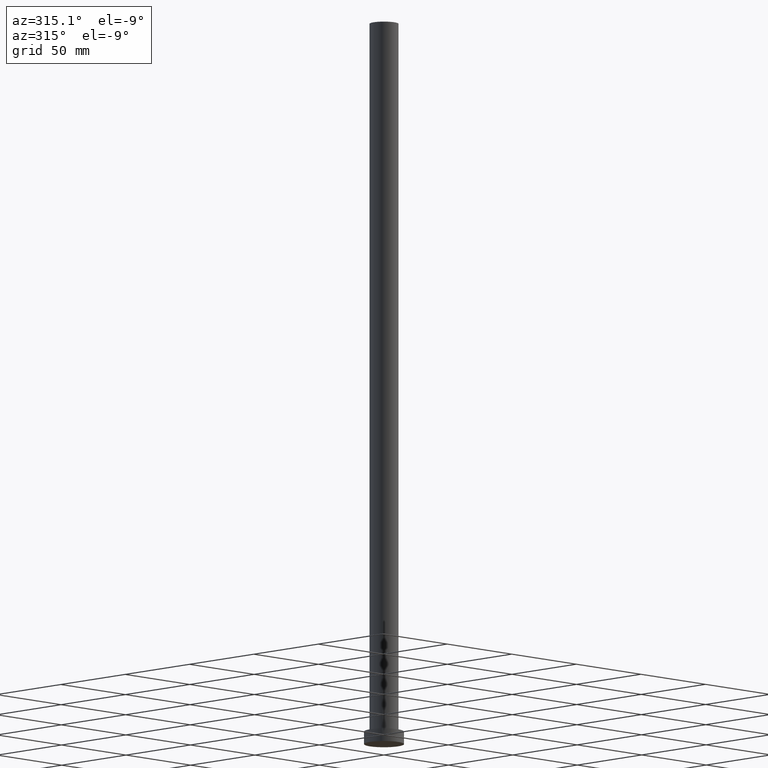
[diagram: clean part render]
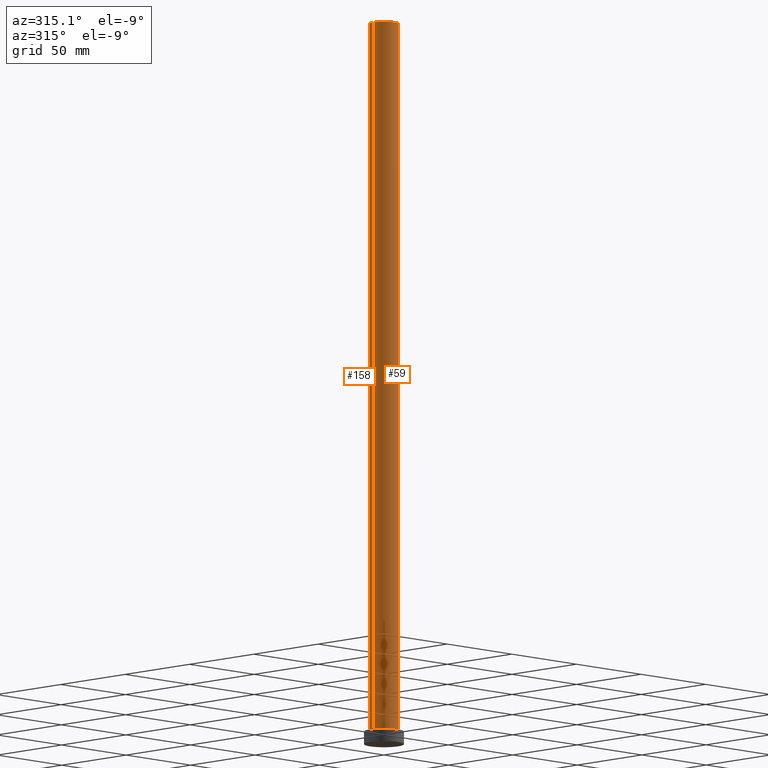
[diagram: same view with one multi-face feature highlighted, each face labeled with its STEP entity id]
A machine part, auxiliary view. The highlighted faces form ONE feature: a constant-radius fillet chain: 2 tangent blend faces with common blend radius 8 mm. The faces share edges in the B-rep.
Their STEP definitions:
[1] entity #59 (Cylinder):
#1 = DIRECTION ( 'NONE',  ( -0.000000000000000000, -0.000000000000000000, -1.000000000000000000 ) ) ;
#10 = VECTOR ( 'NONE', #137, 1000.000000000000000 ) ;
#11 = VERTEX_POINT ( 'NONE', #50 ) ;
#15 = DIRECTION ( 'NONE',  ( 0.000000000000000000, 0.000000000000000000, 1.000000000000000000 ) ) ;
#27 = ORIENTED_EDGE ( 'NONE', *, *, #162, .T. ) ;
#39 = CARTESIAN_POINT ( 'NONE',  ( 0.000000000000000000, 0.000000000000000000, 7.000000000000000000 ) ) ;
#50 = CARTESIAN_POINT ( 'NONE',  ( -8.000000000000000000, 0.000000000000000000, 7.000000000000000000 ) ) ;
#51 = AXIS2_PLACEMENT_3D ( 'NONE', #155, #1, #76 ) ;
#59 = ADVANCED_FACE ( 'NONE', ( #117 ), #102, .T. ) ;
#62 = CARTESIAN_POINT ( 'NONE',  ( 8.000000000000000000, 9.797174393178825657E-16, 400.0000000000000000 ) ) ;
#75 = EDGE_CURVE ( 'NONE', #11, #95, #207, .T. ) ;
#76 = DIRECTION ( 'NONE',  ( -1.000000000000000000, 0.000000000000000000, 0.000000000000000000 ) ) ;
#80 = CARTESIAN_POINT ( 'NONE',  ( -8.000000000000000000, 0.000000000000000000, 400.0000000000000000 ) ) ;
#82 = AXIS2_PLACEMENT_3D ( 'NONE', #119, #15, #231 ) ;
#95 = VERTEX_POINT ( 'NONE', #135 ) ;
#98 = DIRECTION ( 'NONE',  ( 1.000000000000000000, 0.000000000000000000, 0.000000000000000000 ) ) ;
#102 = CYLINDRICAL_SURFACE ( 'NONE', #51, 8.000000000000000000 ) ;
#114 = VERTEX_POINT ( 'NONE', #80 ) ;
#117 = FACE_OUTER_BOUND ( 'NONE', #149, .T. ) ;
#119 = CARTESIAN_POINT ( 'NONE',  ( 0.000000000000000000, 0.000000000000000000, 400.0000000000000000 ) ) ;
#125 = ORIENTED_EDGE ( 'NONE', *, *, #229, .F. ) ;
#134 = CARTESIAN_POINT ( 'NONE',  ( 8.000000000000000000, 9.797174393178825657E-16, 400.0000000000000000 ) ) ;
#135 = CARTESIAN_POINT ( 'NONE',  ( 8.000000000000000000, 9.797174393178825657E-16, 7.000000000000000000 ) ) ;
#137 = DIRECTION ( 'NONE',  ( -0.000000000000000000, -0.000000000000000000, -1.000000000000000000 ) ) ;
#149 = EDGE_LOOP ( 'NONE', ( #125, #249, #27, #157 ) ) ;
#150 = EDGE_CURVE ( 'NONE', #114, #250, #187, .T. ) ;
#155 = CARTESIAN_POINT ( 'NONE',  ( 0.000000000000000000, 0.000000000000000000, 400.0000000000000000 ) ) ;
#157 = ORIENTED_EDGE ( 'NONE', *, *, #75, .T. ) ;
#162 = EDGE_CURVE ( 'NONE', #114, #11, #189, .T. ) ;
#187 = CIRCLE ( 'NONE', #82, 8.000000000000000000 ) ;
#189 = LINE ( 'NONE', #254, #10 ) ;
#207 = CIRCLE ( 'NONE', #227, 8.000000000000000000 ) ;
#210 = DIRECTION ( 'NONE',  ( 0.000000000000000000, 0.000000000000000000, 1.000000000000000000 ) ) ;
#215 = LINE ( 'NONE', #134, #247 ) ;
#227 = AXIS2_PLACEMENT_3D ( 'NONE', #39, #210, #98 ) ;
#229 = EDGE_CURVE ( 'NONE', #250, #95, #215, .T. ) ;
#230 = DIRECTION ( 'NONE',  ( -0.000000000000000000, -0.000000000000000000, -1.000000000000000000 ) ) ;
#231 = DIRECTION ( 'NONE',  ( 1.000000000000000000, 0.000000000000000000, 0.000000000000000000 ) ) ;
#247 = VECTOR ( 'NONE', #230, 1000.000000000000000 ) ;
#249 = ORIENTED_EDGE ( 'NONE', *, *, #150, .F. ) ;
#250 = VERTEX_POINT ( 'NONE', #62 ) ;
#254 = CARTESIAN_POINT ( 'NONE',  ( -8.000000000000000000, 0.000000000000000000, 400.0000000000000000 ) ) ;
[2] entity #158 (Cylinder):
#10 = VECTOR ( 'NONE', #137, 1000.000000000000000 ) ;
#11 = VERTEX_POINT ( 'NONE', #50 ) ;
#16 = DIRECTION ( 'NONE',  ( -0.000000000000000000, -0.000000000000000000, -1.000000000000000000 ) ) ;
#17 = CIRCLE ( 'NONE', #159, 8.000000000000000000 ) ;
#35 = AXIS2_PLACEMENT_3D ( 'NONE', #120, #101, #172 ) ;
#50 = CARTESIAN_POINT ( 'NONE',  ( -8.000000000000000000, 0.000000000000000000, 7.000000000000000000 ) ) ;
#57 = CARTESIAN_POINT ( 'NONE',  ( 0.000000000000000000, 0.000000000000000000, 7.000000000000000000 ) ) ;
#58 = EDGE_CURVE ( 'NONE', #250, #114, #166, .T. ) ;
#62 = CARTESIAN_POINT ( 'NONE',  ( 8.000000000000000000, 9.797174393178825657E-16, 400.0000000000000000 ) ) ;
#74 = DIRECTION ( 'NONE',  ( -1.000000000000000000, 0.000000000000000000, 0.000000000000000000 ) ) ;
#80 = CARTESIAN_POINT ( 'NONE',  ( -8.000000000000000000, 0.000000000000000000, 400.0000000000000000 ) ) ;
#95 = VERTEX_POINT ( 'NONE', #135 ) ;
#101 = DIRECTION ( 'NONE',  ( 0.000000000000000000, 0.000000000000000000, 1.000000000000000000 ) ) ;
#106 = EDGE_LOOP ( 'NONE', ( #131, #129, #255, #202 ) ) ;
#114 = VERTEX_POINT ( 'NONE', #80 ) ;
#120 = CARTESIAN_POINT ( 'NONE',  ( 0.000000000000000000, 0.000000000000000000, 400.0000000000000000 ) ) ;
#129 = ORIENTED_EDGE ( 'NONE', *, *, #229, .T. ) ;
#131 = ORIENTED_EDGE ( 'NONE', *, *, #58, .F. ) ;
#134 = CARTESIAN_POINT ( 'NONE',  ( 8.000000000000000000, 9.797174393178825657E-16, 400.0000000000000000 ) ) ;
#135 = CARTESIAN_POINT ( 'NONE',  ( 8.000000000000000000, 9.797174393178825657E-16, 7.000000000000000000 ) ) ;
#137 = DIRECTION ( 'NONE',  ( -0.000000000000000000, -0.000000000000000000, -1.000000000000000000 ) ) ;
#138 = DIRECTION ( 'NONE',  ( 0.000000000000000000, 0.000000000000000000, 1.000000000000000000 ) ) ;
#158 = ADVANCED_FACE ( 'NONE', ( #190 ), #251, .T. ) ;
#159 = AXIS2_PLACEMENT_3D ( 'NONE', #57, #138, #214 ) ;
#162 = EDGE_CURVE ( 'NONE', #114, #11, #189, .T. ) ;
#166 = CIRCLE ( 'NONE', #35, 8.000000000000000000 ) ;
#172 = DIRECTION ( 'NONE',  ( 1.000000000000000000, 0.000000000000000000, 0.000000000000000000 ) ) ;
#184 = AXIS2_PLACEMENT_3D ( 'NONE', #212, #16, #74 ) ;
#189 = LINE ( 'NONE', #254, #10 ) ;
#190 = FACE_OUTER_BOUND ( 'NONE', #106, .T. ) ;
#191 = EDGE_CURVE ( 'NONE', #95, #11, #17, .T. ) ;
#202 = ORIENTED_EDGE ( 'NONE', *, *, #162, .F. ) ;
#212 = CARTESIAN_POINT ( 'NONE',  ( 0.000000000000000000, 0.000000000000000000, 400.0000000000000000 ) ) ;
#214 = DIRECTION ( 'NONE',  ( 1.000000000000000000, 0.000000000000000000, 0.000000000000000000 ) ) ;
#215 = LINE ( 'NONE', #134, #247 ) ;
#229 = EDGE_CURVE ( 'NONE', #250, #95, #215, .T. ) ;
#230 = DIRECTION ( 'NONE',  ( -0.000000000000000000, -0.000000000000000000, -1.000000000000000000 ) ) ;
#247 = VECTOR ( 'NONE', #230, 1000.000000000000000 ) ;
#250 = VERTEX_POINT ( 'NONE', #62 ) ;
#251 = CYLINDRICAL_SURFACE ( 'NONE', #184, 8.000000000000000000 ) ;
#254 = CARTESIAN_POINT ( 'NONE',  ( -8.000000000000000000, 0.000000000000000000, 400.0000000000000000 ) ) ;
#255 = ORIENTED_EDGE ( 'NONE', *, *, #191, .T. ) ;